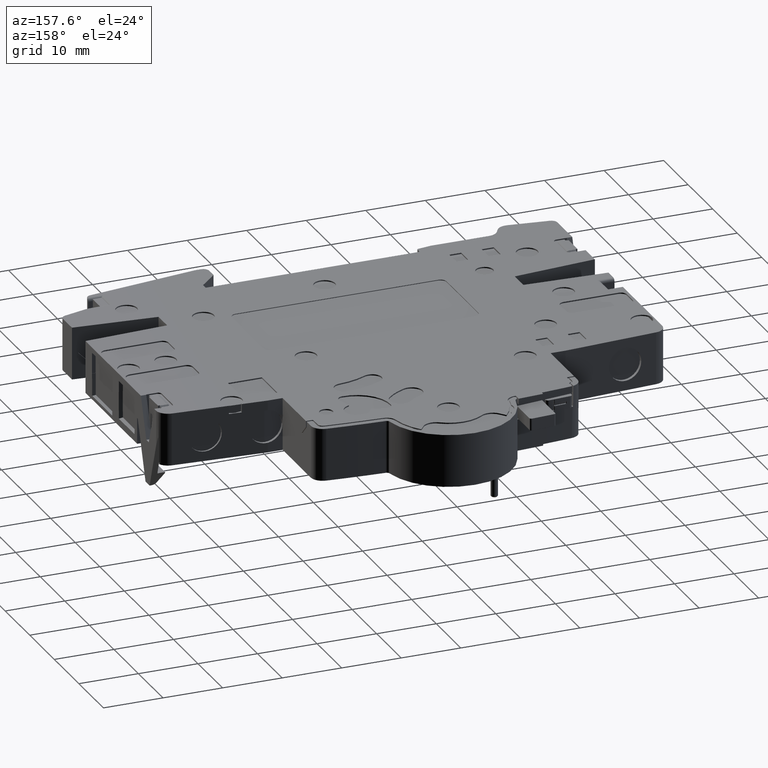
[diagram: clean part render]
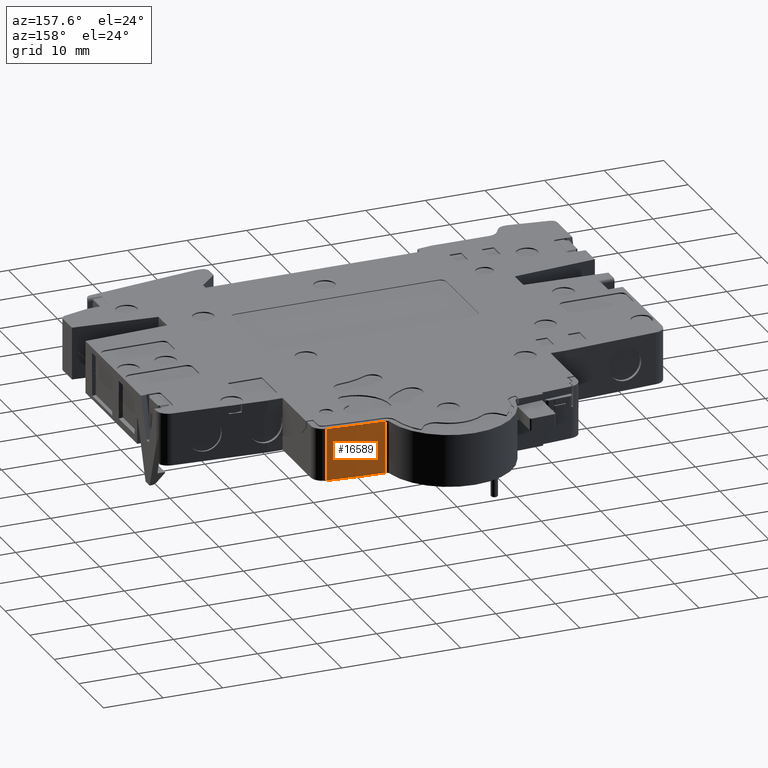
[diagram: same view with one face highlighted and labeled with its STEP entity id]
A machine part, auxiliary view. The second image highlights one B-rep face of the part: STEP entity #16589.
In plain terms, the highlighted cylindrical surface (partial cylindrical patch) has radius 200 mm, axis along (0, 0, 1).
Its self-contained STEP definition (entity closure, byte-faithful):
#716=CARTESIAN_POINT('',(0.E0,-1.42E2,-4.4E0));
#717=DIRECTION('',(0.E0,0.E0,1.E0));
#718=DIRECTION('',(1.035353535354E-1,9.946257741323E-1,0.E0));
#719=AXIS2_PLACEMENT_3D('',#716,#717,#718);
#4545=CARTESIAN_POINT('',(0.E0,-1.42E2,4.4E0));
#4546=DIRECTION('',(0.E0,0.E0,1.E0));
#4547=DIRECTION('',(1.035353535354E-1,9.946257741323E-1,0.E0));
#4548=AXIS2_PLACEMENT_3D('',#4545,#4546,#4547);
#4577=DIRECTION('',(0.E0,0.E0,1.E0));
#4578=VECTOR('',#4577,8.8E0);
#4579=CARTESIAN_POINT('',(1.104352507507E1,5.769486862190E1,-4.4E0));
#4580=LINE('',#4579,#4578);
#4595=DIRECTION('',(0.E0,0.E0,-1.E0));
#4596=VECTOR('',#4595,8.8E0);
#4597=CARTESIAN_POINT('',(2.070707070707E1,5.692515482646E1,4.4E0));
#4598=LINE('',#4597,#4596);
#8083=CARTESIAN_POINT('',(1.104352507507E1,5.769486862190E1,-4.4E0));
#8084=CARTESIAN_POINT('',(1.104352507507E1,5.769486862190E1,4.4E0));
#8085=VERTEX_POINT('',#8083);
#8086=VERTEX_POINT('',#8084);
#8099=CARTESIAN_POINT('',(2.070707070707E1,5.692515482646E1,4.4E0));
#8100=VERTEX_POINT('',#8099);
#8101=CARTESIAN_POINT('',(2.070707070707E1,5.692515482646E1,-4.4E0));
#8102=VERTEX_POINT('',#8101);
#16577=CARTESIAN_POINT('',(0.E0,-1.42E2,-4.4E0));
#16578=DIRECTION('',(0.E0,0.E0,1.E0));
#16579=DIRECTION('',(1.E0,0.E0,0.E0));
#16580=AXIS2_PLACEMENT_3D('',#16577,#16578,#16579);
#16581=CYLINDRICAL_SURFACE('',#16580,2.E2);
#16583=ORIENTED_EDGE('',*,*,#16582,.F.);
#16584=ORIENTED_EDGE('',*,*,#16516,.T.);
#16585=ORIENTED_EDGE('',*,*,#16564,.F.);
#16586=ORIENTED_EDGE('',*,*,#10977,.F.);
#16587=EDGE_LOOP('',(#16583,#16584,#16585,#16586));
#16588=FACE_OUTER_BOUND('',#16587,.F.);
#16589=ADVANCED_FACE('',(#16588),#16581,.T.);
#720=CIRCLE('',#719,2.E2);
#4549=CIRCLE('',#4548,2.E2);
#10977=EDGE_CURVE('',#8102,#8085,#720,.T.);
#16516=EDGE_CURVE('',#8100,#8086,#4549,.T.);
#16564=EDGE_CURVE('',#8085,#8086,#4580,.T.);
#16582=EDGE_CURVE('',#8100,#8102,#4598,.T.);